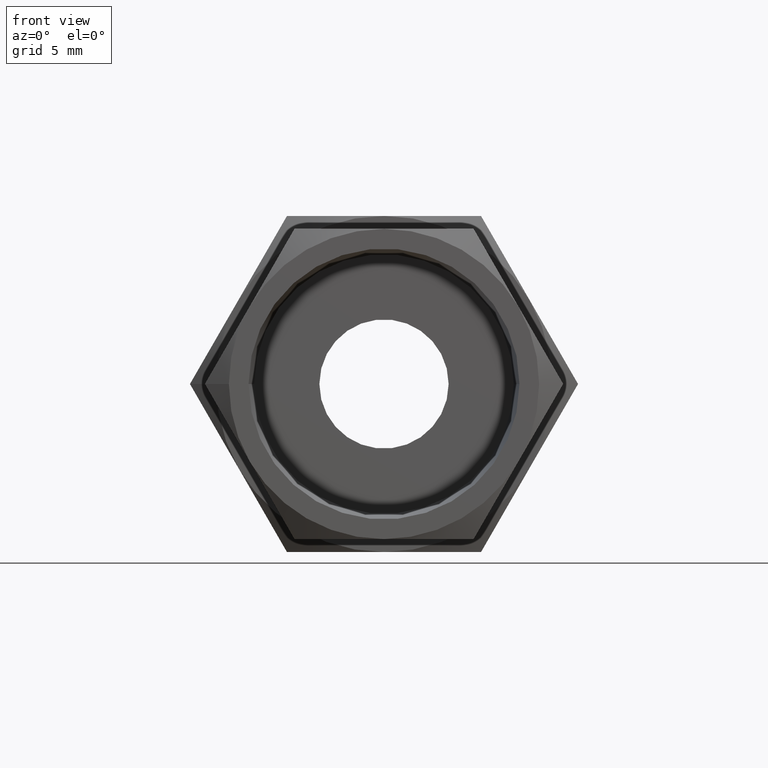
[diagram: clean part render]
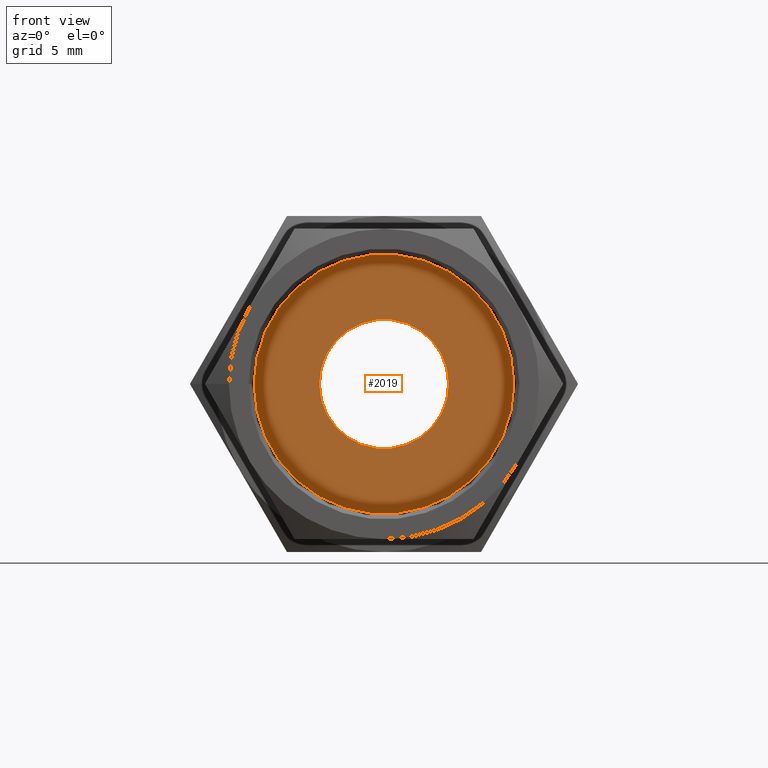
[diagram: same view with one face highlighted and labeled with its STEP entity id]
A machine part, front view. The second image highlights one B-rep face of the part: STEP entity #2019.
In plain terms, the highlighted planar face has unit normal (-0, -1, 0).
Its self-contained STEP definition (entity closure, byte-faithful):
#46 = CIRCLE ( 'NONE', #2794, 0.1968503937007731500 ) ;
#68 = VERTEX_POINT ( 'NONE', #875 ) ;
#86 = DIRECTION ( 'NONE',  ( -2.955362829580007300E-013, -1.000000000000000000, 0.0000000000000000000 ) ) ;
#151 = CARTESIAN_POINT ( 'NONE',  ( 0.2960625617350612900, -0.07874015748033326400, 0.0000000000000000000 ) ) ;
#239 = AXIS2_PLACEMENT_3D ( 'NONE', #151, #2198, #456 ) ;
#346 = EDGE_LOOP ( 'NONE', ( #2065, #1839 ) ) ;
#355 = AXIS2_PLACEMENT_3D ( 'NONE', #903, #558, #715 ) ;
#456 = DIRECTION ( 'NONE',  ( 1.000000000000000000, -2.955969000000000000E-013, 0.0000000000000000000 ) ) ;
#509 = AXIS2_PLACEMENT_3D ( 'NONE', #3110, #1466, #3388 ) ;
#558 = DIRECTION ( 'NONE',  ( -2.955362829580007300E-013, -1.000000000000000000, 0.0000000000000000000 ) ) ;
#633 = VERTEX_POINT ( 'NONE', #3307 ) ;
#692 = CIRCLE ( 'NONE', #509, 0.1968503937007731500 ) ;
#715 = DIRECTION ( 'NONE',  ( 1.000000000000000000, -2.955429250291762800E-013, 0.0000000000000000000 ) ) ;
#875 = CARTESIAN_POINT ( 'NONE',  ( 0.3952747297791970900, -0.07874015748003955500, 0.0000000000000000000 ) ) ;
#903 = CARTESIAN_POINT ( 'NONE',  ( -2.331557463914014500E-014, -0.07874015747992274500, 0.0000000000000000000 ) ) ;
#948 = CIRCLE ( 'NONE', #355, 0.3952747297792204000 ) ;
#956 = EDGE_CURVE ( 'NONE', #68, #1541, #948, .T. ) ;
#982 = CARTESIAN_POINT ( 'NONE',  ( -2.327534645669028200E-014, -0.07874015748026146100, 0.0000000000000000000 ) ) ;
#1108 = CIRCLE ( 'NONE', #2531, 0.3952747297792204000 ) ;
#1134 = FACE_OUTER_BOUND ( 'NONE', #346, .T. ) ;
#1278 = DIRECTION ( 'NONE',  ( 1.000000000000000000, -2.955968803064693400E-013, 0.0000000000000000000 ) ) ;
#1457 = ORIENTED_EDGE ( 'NONE', *, *, #3458, .T. ) ;
#1466 = DIRECTION ( 'NONE',  ( 2.955969000000000000E-013, 1.000000000000000000, -0.0000000000000000000 ) ) ;
#1541 = VERTEX_POINT ( 'NONE', #3309 ) ;
#1839 = ORIENTED_EDGE ( 'NONE', *, *, #3711, .T. ) ;
#1861 = CARTESIAN_POINT ( 'NONE',  ( -2.331557463914014500E-014, -0.07874015747992274500, 0.0000000000000000000 ) ) ;
#1908 = FACE_BOUND ( 'NONE', #3127, .T. ) ;
#2019 = ADVANCED_FACE ( 'NONE', ( #1908, #1134 ), #2171, .T. ) ;
#2065 = ORIENTED_EDGE ( 'NONE', *, *, #956, .T. ) ;
#2131 = DIRECTION ( 'NONE',  ( 1.000000000000000000, -2.955429250291762800E-013, 0.0000000000000000000 ) ) ;
#2171 = PLANE ( 'NONE',  #239 ) ;
#2198 = DIRECTION ( 'NONE',  ( -2.955969000000000000E-013, -1.000000000000000000, 0.0000000000000000000 ) ) ;
#2199 = CARTESIAN_POINT ( 'NONE',  ( -0.1968503937007964300, -0.07874015748020327100, 2.410722045565794700E-017 ) ) ;
#2400 = EDGE_CURVE ( 'NONE', #633, #2848, #46, .T. ) ;
#2531 = AXIS2_PLACEMENT_3D ( 'NONE', #1861, #86, #2131 ) ;
#2748 = ORIENTED_EDGE ( 'NONE', *, *, #2400, .T. ) ;
#2794 = AXIS2_PLACEMENT_3D ( 'NONE', #982, #2938, #1278 ) ;
#2848 = VERTEX_POINT ( 'NONE', #2199 ) ;
#2938 = DIRECTION ( 'NONE',  ( 2.955969000000000000E-013, 1.000000000000000000, -0.0000000000000000000 ) ) ;
#3110 = CARTESIAN_POINT ( 'NONE',  ( -2.327534645669028200E-014, -0.07874015748026146100, 0.0000000000000000000 ) ) ;
#3127 = EDGE_LOOP ( 'NONE', ( #2748, #1457 ) ) ;
#3307 = CARTESIAN_POINT ( 'NONE',  ( 0.1968503937007498600, -0.07874015748031963600, 0.0000000000000000000 ) ) ;
#3309 = CARTESIAN_POINT ( 'NONE',  ( -0.3952747297792436600, -0.07874015747980592200, 4.946193686220960300E-017 ) ) ;
#3388 = DIRECTION ( 'NONE',  ( 1.000000000000000000, -2.955968803064693400E-013, 0.0000000000000000000 ) ) ;
#3458 = EDGE_CURVE ( 'NONE', #2848, #633, #692, .T. ) ;
#3711 = EDGE_CURVE ( 'NONE', #1541, #68, #1108, .T. ) ;